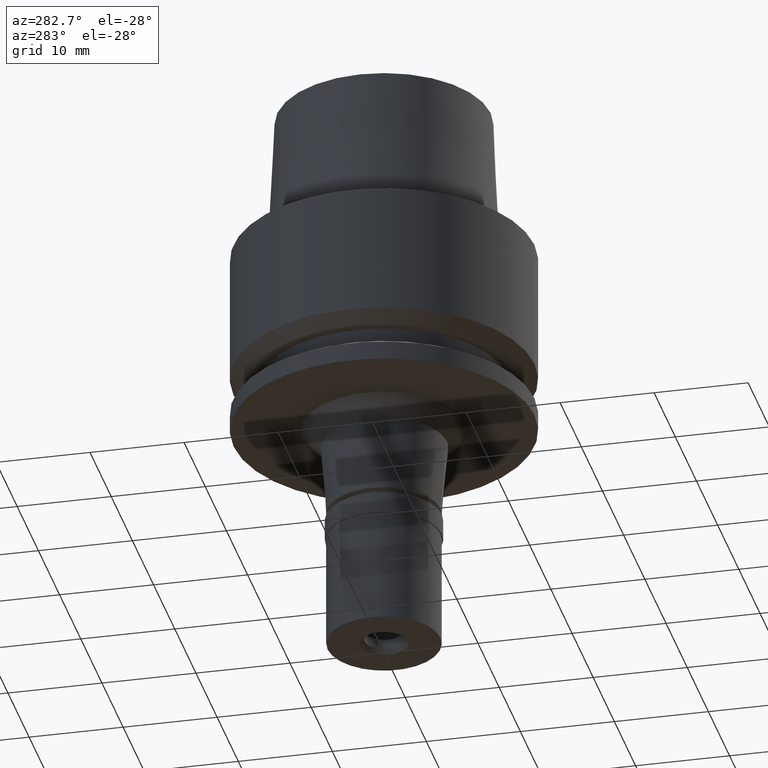
[diagram: clean part render]
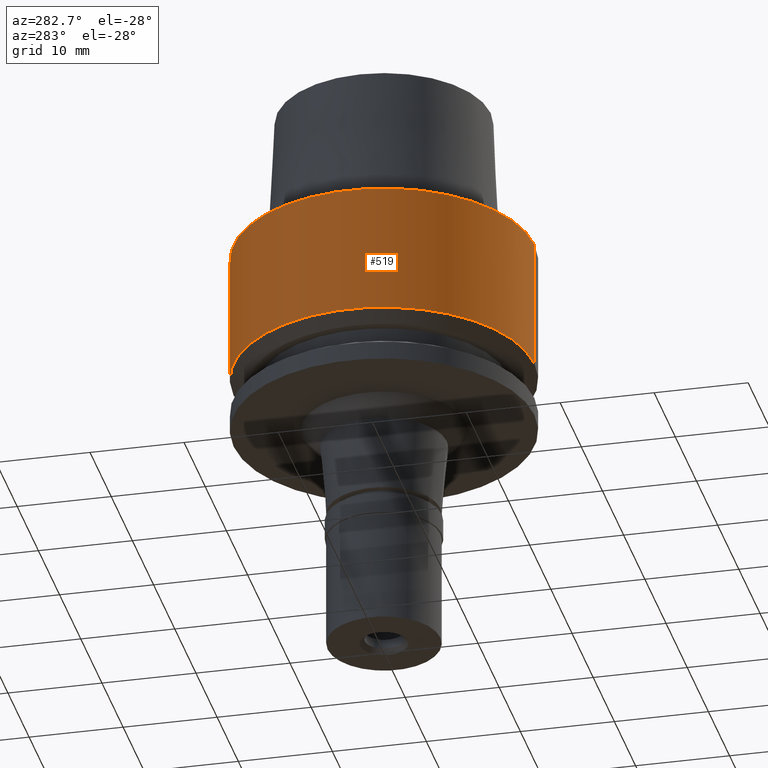
[diagram: same view with one face highlighted and labeled with its STEP entity id]
A machine part, auxiliary view. The second image highlights one B-rep face of the part: STEP entity #519.
In plain terms, the highlighted cylindrical surface (partial cylindrical patch) has radius 16 mm, axis along (0, 0, -1).
Its self-contained STEP definition (entity closure, byte-faithful):
#12 = DIRECTION ( 'NONE',  ( 0.0000000000000000000, -1.000000000000000000, 0.0000000000000000000 ) ) ;
#56 = AXIS2_PLACEMENT_3D ( 'NONE', #886, #227, #12 ) ;
#88 = EDGE_CURVE ( 'NONE', #668, #2281, #395, .T. ) ;
#99 = ORIENTED_EDGE ( 'NONE', *, *, #1759, .T. ) ;
#188 = DIRECTION ( 'NONE',  ( 0.0000000000000000000, 6.772870976582999535E-14, -1.000000000000000000 ) ) ;
#227 = DIRECTION ( 'NONE',  ( 0.0000000000000000000, 0.0000000000000000000, -1.000000000000000000 ) ) ;
#329 = CARTESIAN_POINT ( 'NONE',  ( 0.0000000000000000000, -16.00000000000000000, -1.776356839399999922E-14 ) ) ;
#395 = LINE ( 'NONE', #583, #1089 ) ;
#519 = ADVANCED_FACE ( 'NONE', ( #633 ), #2344, .T. ) ;
#583 = CARTESIAN_POINT ( 'NONE',  ( 0.0000000000000000000, 16.00000000000000000, -1.184237892934000027E-14 ) ) ;
#621 = CARTESIAN_POINT ( 'NONE',  ( 0.0000000000000000000, 16.00000000000000000, -13.97927405783999966 ) ) ;
#633 = FACE_OUTER_BOUND ( 'NONE', #2143, .T. ) ;
#668 = VERTEX_POINT ( 'NONE', #936 ) ;
#779 = LINE ( 'NONE', #987, #1889 ) ;
#841 = EDGE_CURVE ( 'NONE', #2594, #2408, #779, .T. ) ;
#886 = CARTESIAN_POINT ( 'NONE',  ( 0.0000000000000000000, 0.0000000000000000000, 18.84999999999999787 ) ) ;
#936 = CARTESIAN_POINT ( 'NONE',  ( 0.0000000000000000000, 16.00000000000000000, -1.184237892934000027E-14 ) ) ;
#987 = CARTESIAN_POINT ( 'NONE',  ( 0.0000000000000000000, -16.00000000000000000, -1.184237892934000027E-14 ) ) ;
#988 = EDGE_CURVE ( 'NONE', #2281, #2408, #1231, .T. ) ;
#999 = CIRCLE ( 'NONE', #1082, 16.00000000000000000 ) ;
#1082 = AXIS2_PLACEMENT_3D ( 'NONE', #2283, #1608, #1521 ) ;
#1089 = VECTOR ( 'NONE', #2457, 1000.000000000000000 ) ;
#1231 = CIRCLE ( 'NONE', #2409, 16.00000000000000000 ) ;
#1253 = CARTESIAN_POINT ( 'NONE',  ( 0.0000000000000000000, 0.0000000000000000000, -13.97927405783999966 ) ) ;
#1301 = ORIENTED_EDGE ( 'NONE', *, *, #88, .T. ) ;
#1432 = CARTESIAN_POINT ( 'NONE',  ( 0.0000000000000000000, -16.00000000000000000, -13.97927405783999966 ) ) ;
#1521 = DIRECTION ( 'NONE',  ( 0.0000000000000000000, -1.000000000000000000, 0.0000000000000000000 ) ) ;
#1608 = DIRECTION ( 'NONE',  ( 0.0000000000000000000, 0.0000000000000000000, -1.000000000000000000 ) ) ;
#1759 = EDGE_CURVE ( 'NONE', #2594, #668, #999, .T. ) ;
#1889 = VECTOR ( 'NONE', #188, 1000.000000000000000 ) ;
#2080 = DIRECTION ( 'NONE',  ( 0.0000000000000000000, 1.000000000000000000, 0.0000000000000000000 ) ) ;
#2143 = EDGE_LOOP ( 'NONE', ( #2308, #2508, #99, #1301 ) ) ;
#2149 = DIRECTION ( 'NONE',  ( 0.0000000000000000000, 0.0000000000000000000, 1.000000000000000000 ) ) ;
#2281 = VERTEX_POINT ( 'NONE', #621 ) ;
#2283 = CARTESIAN_POINT ( 'NONE',  ( 0.0000000000000000000, 0.0000000000000000000, -1.776356839399999922E-14 ) ) ;
#2308 = ORIENTED_EDGE ( 'NONE', *, *, #988, .T. ) ;
#2344 = CYLINDRICAL_SURFACE ( 'NONE', #56, 16.00000000000000000 ) ;
#2408 = VERTEX_POINT ( 'NONE', #1432 ) ;
#2409 = AXIS2_PLACEMENT_3D ( 'NONE', #1253, #2149, #2080 ) ;
#2457 = DIRECTION ( 'NONE',  ( 0.0000000000000000000, -6.772870976582999535E-14, -1.000000000000000000 ) ) ;
#2508 = ORIENTED_EDGE ( 'NONE', *, *, #841, .F. ) ;
#2594 = VERTEX_POINT ( 'NONE', #329 ) ;